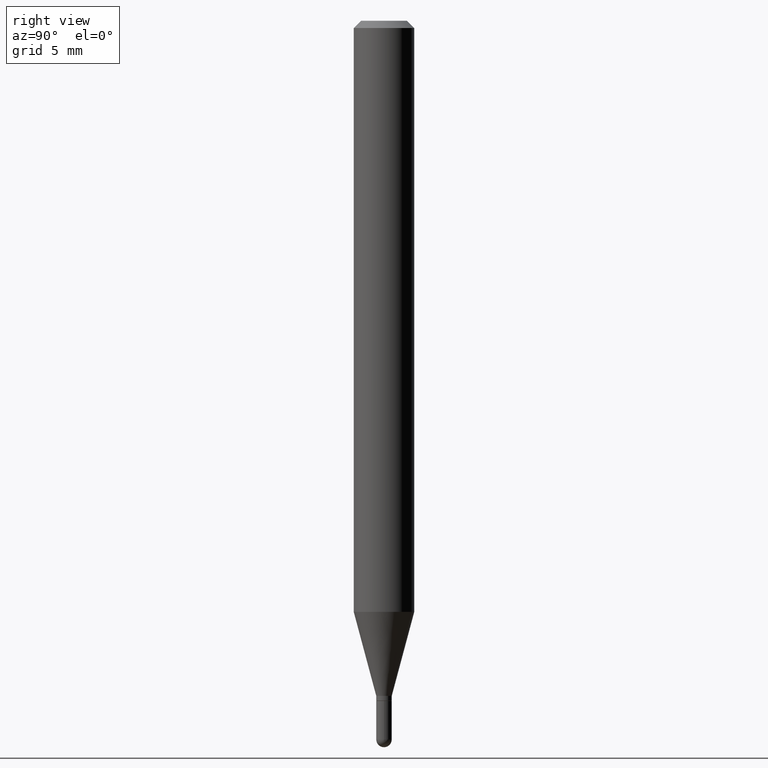
[diagram: clean part render]
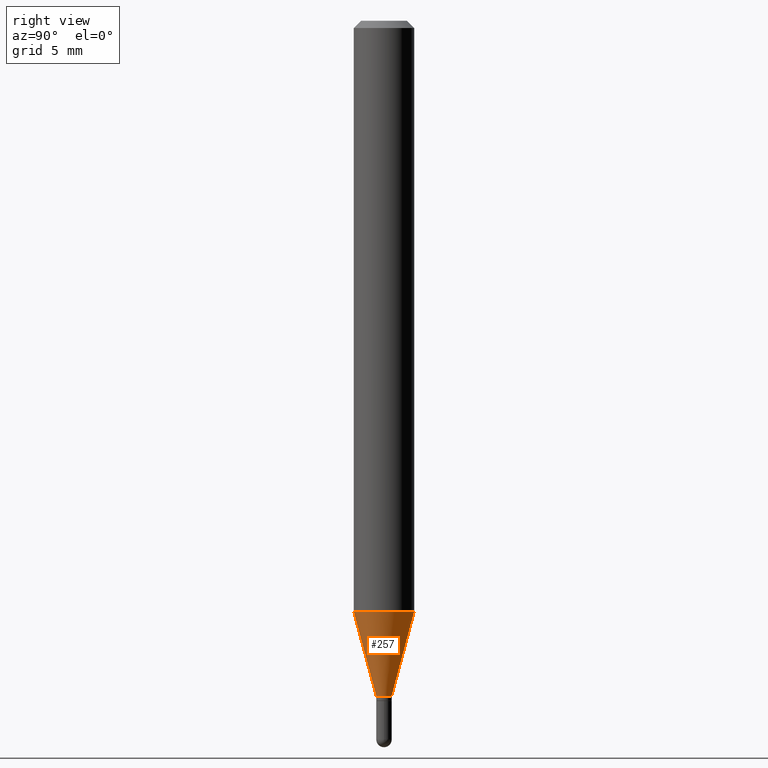
[diagram: same view with one face highlighted and labeled with its STEP entity id]
A machine part, right view. The second image highlights one B-rep face of the part: STEP entity #257.
In plain terms, the highlighted conical surface has half-angle 15 deg.
Its self-contained STEP definition (entity closure, byte-faithful):
#33 = EDGE_CURVE ( 'NONE', #340, #119, #260, .T. ) ;
#38 = ORIENTED_EDGE ( 'NONE', *, *, #186, .F. ) ;
#43 = CARTESIAN_POINT ( 'NONE',  ( -4.364351673553618406E-16, -0.06250000000000426048, -1.220459637448047641 ) ) ;
#44 = DIRECTION ( 'NONE',  ( -2.445462374393167961E-29, 3.491490549535319671E-15, 1.000000000000000000 ) ) ;
#64 = CARTESIAN_POINT ( 'NONE',  ( 3.408974549904076448E-29, -4.867137826052236355E-15, -1.394000000000000128 ) ) ;
#68 = EDGE_LOOP ( 'NONE', ( #429, #486, #38, #209 ) ) ;
#96 = DIRECTION ( 'NONE',  ( -6.982962677686265922E-15, -1.000000000000000000, 0.000000000000000000 ) ) ;
#99 = CARTESIAN_POINT ( 'NONE',  ( -1.117274028429456354E-16, -0.01600000000000479164, -1.394000000000000128 ) ) ;
#107 = FACE_OUTER_BOUND ( 'NONE', #68, .T. ) ;
#116 = CARTESIAN_POINT ( 'NONE',  ( -1.117274028429456354E-16, -0.01600000000000479164, -1.394000000000000128 ) ) ;
#119 = VERTEX_POINT ( 'NONE', #357 ) ;
#124 = CIRCLE ( 'NONE', #306, 0.06250000000000000000 ) ;
#133 = AXIS2_PLACEMENT_3D ( 'NONE', #167, #331, #96 ) ;
#143 = DIRECTION ( 'NONE',  ( -2.445462374393167961E-29, 3.491490549535319671E-15, 1.000000000000000000 ) ) ;
#161 = EDGE_CURVE ( 'NONE', #363, #311, #465, .T. ) ;
#167 = CARTESIAN_POINT ( 'NONE',  ( 3.408974549904076448E-29, -4.867137826052236355E-15, -1.394000000000000128 ) ) ;
#186 = EDGE_CURVE ( 'NONE', #311, #119, #124, .T. ) ;
#202 = CARTESIAN_POINT ( 'NONE',  ( 2.984588122844728288E-29, -4.261223290239161768E-15, -1.220459637448047863 ) ) ;
#209 = ORIENTED_EDGE ( 'NONE', *, *, #161, .F. ) ;
#234 = DIRECTION ( 'NONE',  ( -1.807323732225330928E-15, -0.2588190451025182970, 0.9659258262890689783 ) ) ;
#257 = ADVANCED_FACE ( 'NONE', ( #107 ), #334, .T. ) ;
#260 = LINE ( 'NONE', #451, #413 ) ;
#280 = CIRCLE ( 'NONE', #133, 0.01599999999999992401 ) ;
#302 = DIRECTION ( 'NONE',  ( -6.982962677686265922E-15, -1.000000000000000000, 0.000000000000000000 ) ) ;
#306 = AXIS2_PLACEMENT_3D ( 'NONE', #202, #44, #329 ) ;
#311 = VERTEX_POINT ( 'NONE', #43 ) ;
#316 = VECTOR ( 'NONE', #234, 39.37007874015748143 ) ;
#329 = DIRECTION ( 'NONE',  ( -6.982962677686265922E-15, -1.000000000000000000, 4.370956789862821150E-15 ) ) ;
#331 = DIRECTION ( 'NONE',  ( -2.445462374393167961E-29, 3.491490549535319671E-15, 1.000000000000000000 ) ) ;
#334 = CONICAL_SURFACE ( 'NONE', #431, 0.01599999999999992401, 0.2617993877991502960 ) ;
#340 = VERTEX_POINT ( 'NONE', #438 ) ;
#357 = CARTESIAN_POINT ( 'NONE',  ( 4.440892098500920998E-16, 0.06249999999999571176, -1.220459637448048085 ) ) ;
#363 = VERTEX_POINT ( 'NONE', #99 ) ;
#413 = VECTOR ( 'NONE', #488, 39.37007874015748143 ) ;
#429 = ORIENTED_EDGE ( 'NONE', *, *, #464, .T. ) ;
#431 = AXIS2_PLACEMENT_3D ( 'NONE', #64, #143, #302 ) ;
#438 = CARTESIAN_POINT ( 'NONE',  ( 2.788880237858710265E-16, 0.01599999999999505637, -1.394000000000000128 ) ) ;
#451 = CARTESIAN_POINT ( 'NONE',  ( 1.136868377216495587E-16, 0.01599999999999505637, -1.394000000000000128 ) ) ;
#464 = EDGE_CURVE ( 'NONE', #363, #340, #280, .T. ) ;
#465 = LINE ( 'NONE', #116, #316 ) ;
#486 = ORIENTED_EDGE ( 'NONE', *, *, #33, .T. ) ;
#488 = DIRECTION ( 'NONE',  ( 1.839019923739601104E-15, 0.2588190451025250693, 0.9659258262890670910 ) ) ;